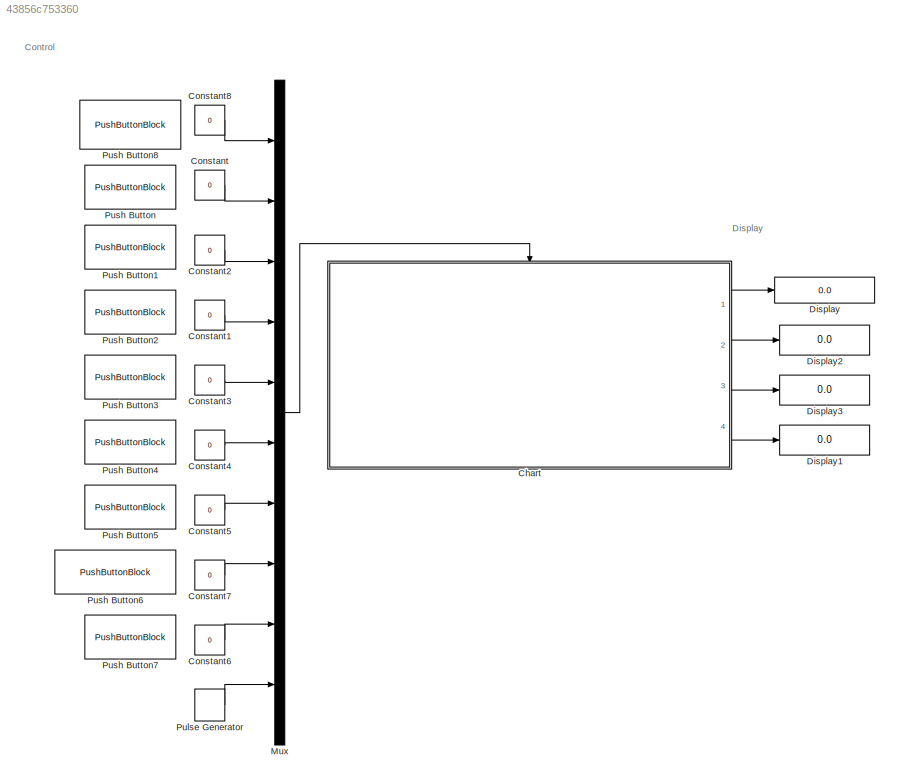
MODEL slx_43856c753360
KIND model
CONFIG AbsTol = auto
CONFIG EnableMultiTasking = off
CONFIG FixedStep = auto
CONFIG MaxStep = auto
CONFIG MinStep = auto
CONFIG RelTol = 1e-3
CONFIG SampleTimeConstraint = Unconstrained
CONFIG Solver = VariableStepAuto
CONFIG SolverName = VariableStepAuto
CONFIG StartTime = 0.0
CONFIG StopTime = 400000
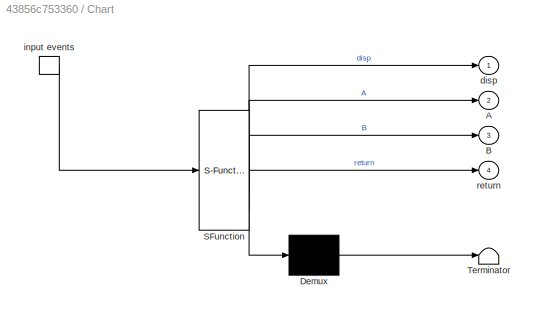
BLOCK [SubSystem] Chart
  ErrorFcn = Stateflow.Translate.translate
  PermitHierarchicalResolution = ExplicitOnly
  Ports = [0, 4, 0, 1]
  RequestExecContextInheritance = off
  SFBlockType = Chart
  TreatAsAtomicUnit = on
BLOCK [Demux] Chart/ Demux 
  Outputs = 1
  Ports = [1, 1]
BLOCK [S-Function] Chart/ SFunction 
  EnableBusSupport = on
  FunctionName = sf_sfun
  PortCounts = [1 5]
  Ports = [1, 5]
  SFcnIsStateOwnerBlock = off
  SFunctionDeploymentMode = off
  Tag = Stateflow S-Function 3
BLOCK [Terminator] Chart/ Terminator 
BLOCK [Outport] Chart/A
  Port = 2
BLOCK [Outport] Chart/B
  Port = 3
BLOCK [Outport] Chart/disp
BLOCK [TriggerPort] Chart/input events
  Ports = [0, 1]
  ShowOutputPort = on
  StatesWhenEnabling = held
  VariantControl = (inherit)
BLOCK [Outport] Chart/return
  Port = 4
BLOCK [Constant] Constant
  Value = 0
BLOCK [Constant] Constant1
  Value = 0
BLOCK [Constant] Constant2
  Value = 0
BLOCK [Constant] Constant3
  Value = 0
BLOCK [Constant] Constant4
  Value = 0
BLOCK [Constant] Constant5
  Value = 0
BLOCK [Constant] Constant6
  Value = 0
BLOCK [Constant] Constant7
  Value = 0
BLOCK [Constant] Constant8
  Value = 0
BLOCK [Display] Display
  Decimation = 1
  Ports = [1]
BLOCK [Display] Display1
  Decimation = 1
  Ports = [1]
BLOCK [Display] Display2
  Decimation = 1
  Ports = [1]
BLOCK [Display] Display3
  Decimation = 1
  Ports = [1]
BLOCK [Mux] Mux
  DisplayOption = bar
  Inputs = 10
  Ports = [10, 1]
BLOCK [DiscretePulseGenerator] Pulse Generator
  Period = 1
  Ports = [0, 1]
  PulseType = Time based
  PulseWidth = 5
BLOCK [PushButtonBlock] Push Button
  ButtonText = 1kr
BLOCK [PushButtonBlock] Push Button1
  ButtonText = 5kr
BLOCK [PushButtonBlock] Push Button2
  ButtonText = 10kr
BLOCK [PushButtonBlock] Push Button3
  ButtonText = order
BLOCK [PushButtonBlock] Push Button4
  ButtonText = option_A
BLOCK [PushButtonBlock] Push Button5
  ButtonText = option_B
BLOCK [PushButtonBlock] Push Button6
  ButtonText = insert_more_money
BLOCK [PushButtonBlock] Push Button7
  ButtonText = finish
BLOCK [PushButtonBlock] Push Button8
  ButtonText = Start_Button
ANNOTATION (root): Control
ANNOTATION (root): Display
LINE Chart:1 -> Display:1
LINE Chart:2 -> Display2:1
LINE Chart:3 -> Display3:1
LINE Chart:4 -> Display1:1
LINE Constant1:1 -> Mux:4
LINE Constant2:1 -> Mux:3
LINE Constant3:1 -> Mux:5
LINE Constant4:1 -> Mux:6
LINE Constant5:1 -> Mux:7
LINE Constant6:1 -> Mux:9
LINE Constant7:1 -> Mux:8
LINE Constant8:1 -> Mux:1
LINE Constant:1 -> Mux:2
LINE Mux:1 -> Chart:trigger
LINE Pulse Generator:1 -> Mux:10
CHART Chart states=7 transitions=16
  STATE_LABEL "coininsert\ndu: disp= 'Insert coin'; \non one_kr: coin_count=coin_count+1;\non five_kr: coin_count=coin_count+5;\non ten_kr: coin_count=coin_count+10;\n"
  STATE_LABEL "Idle\nen, du: disp= 'Welcome'; coin_count=0;\nen: A=0; B=0;"
  STATE_LABEL "order\ndu: disp= 'Choose option'; \n"
  STATE_LABEL "deliverA\nen: coin_count = coin_count-8; \ndu:return=coin_count;\ndu: disp= 'Product A delivered';\ndu: A=A+1;\n"
  STATE_LABEL "optionA\ndu: disp= 'Option A selected'; \n\n"
  STATE_LABEL "optionB\ndu: disp= 'Option B selected'; \n"
  STATE_LABEL "deliverB\nen: coin_count = coin_count-6; \ndu: return=coin_count;\ndu: disp= 'Product B delivered ';\ndu: B=B+1;\n"
CHART  states=0 transitions=0
